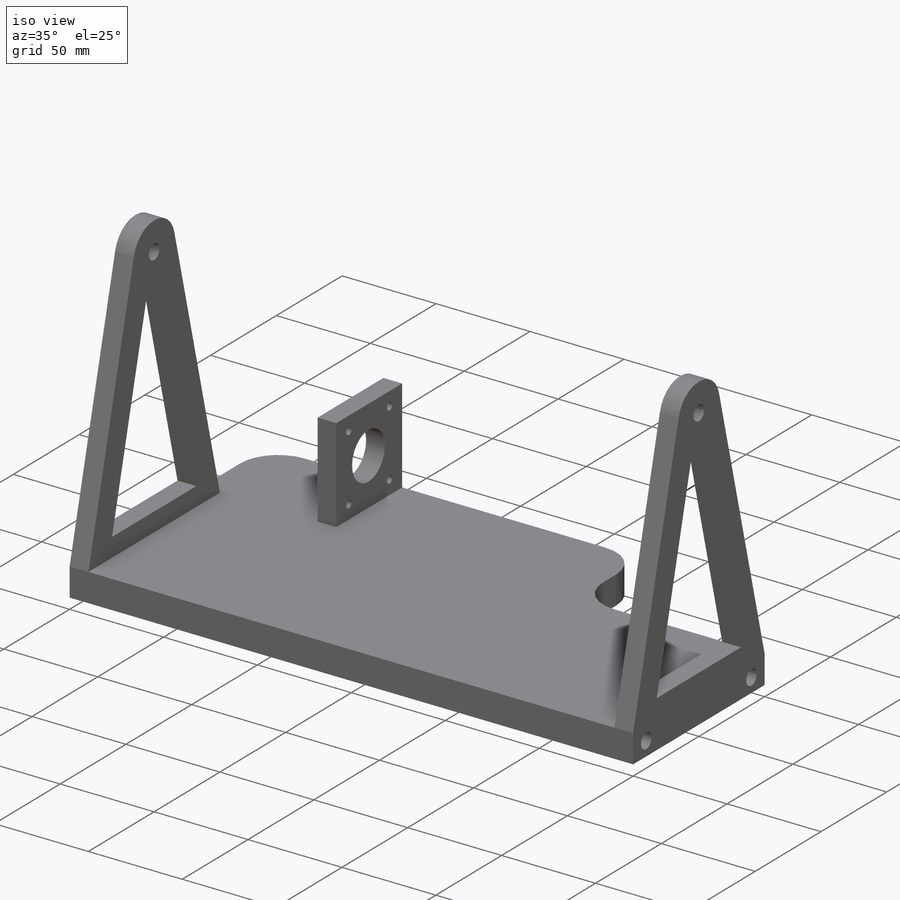
[diagram: iso view]
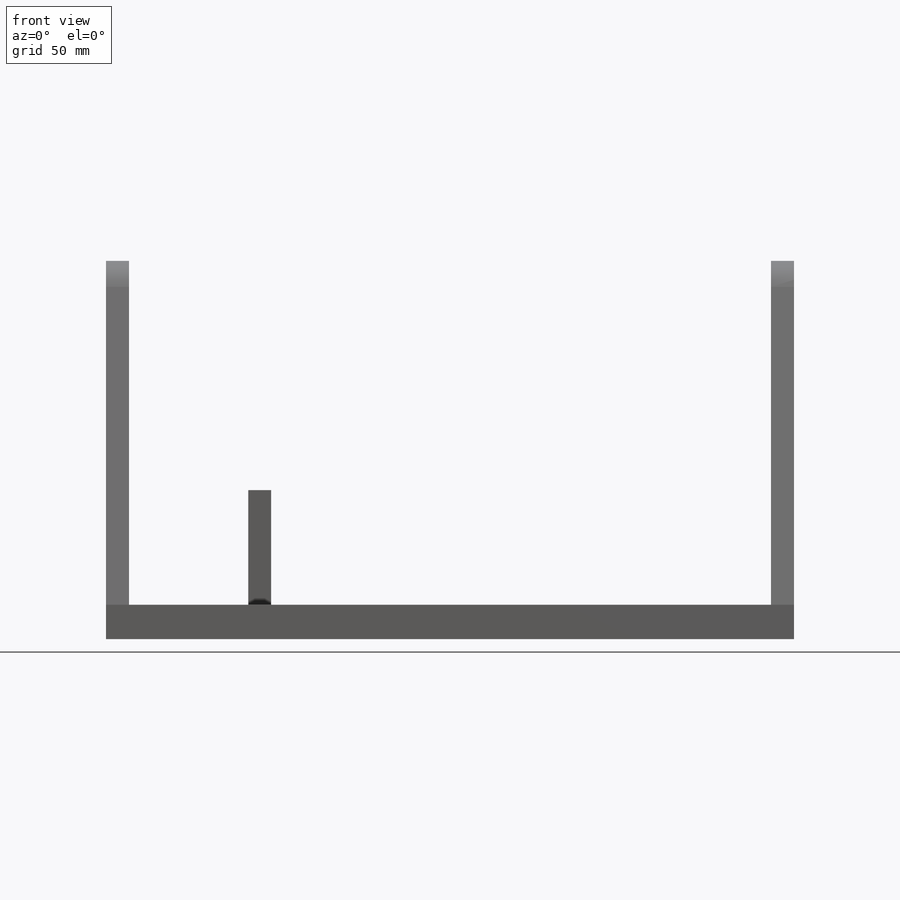
[diagram: front view]
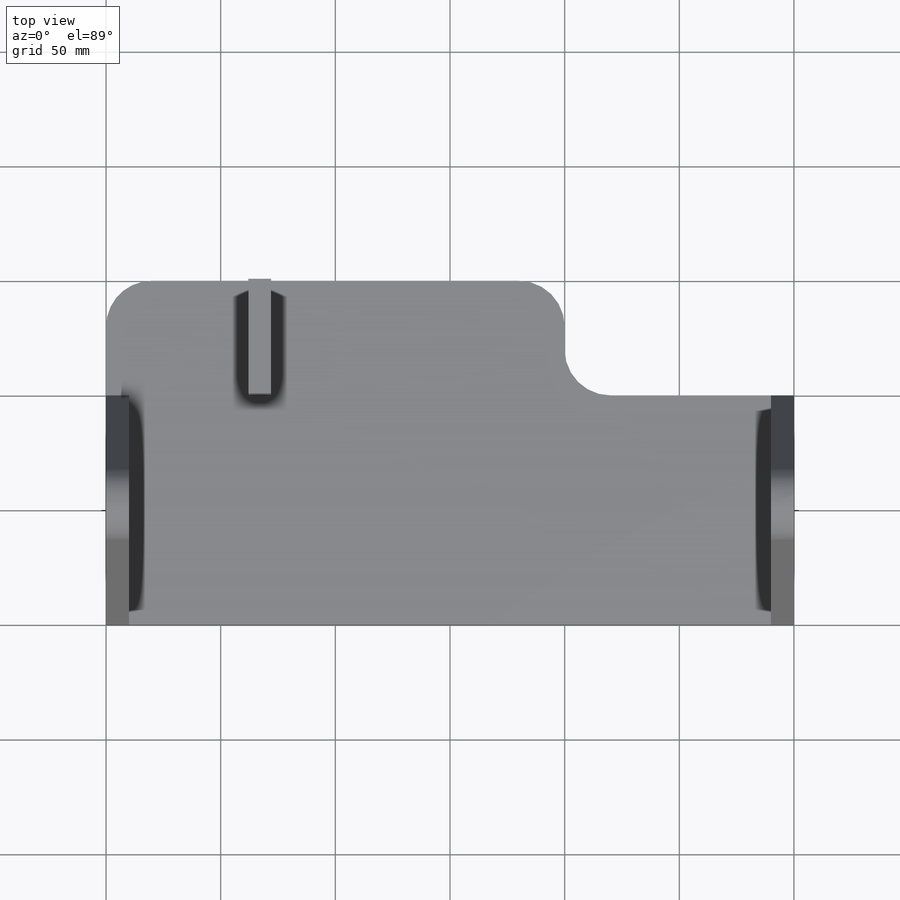
[diagram: top view]
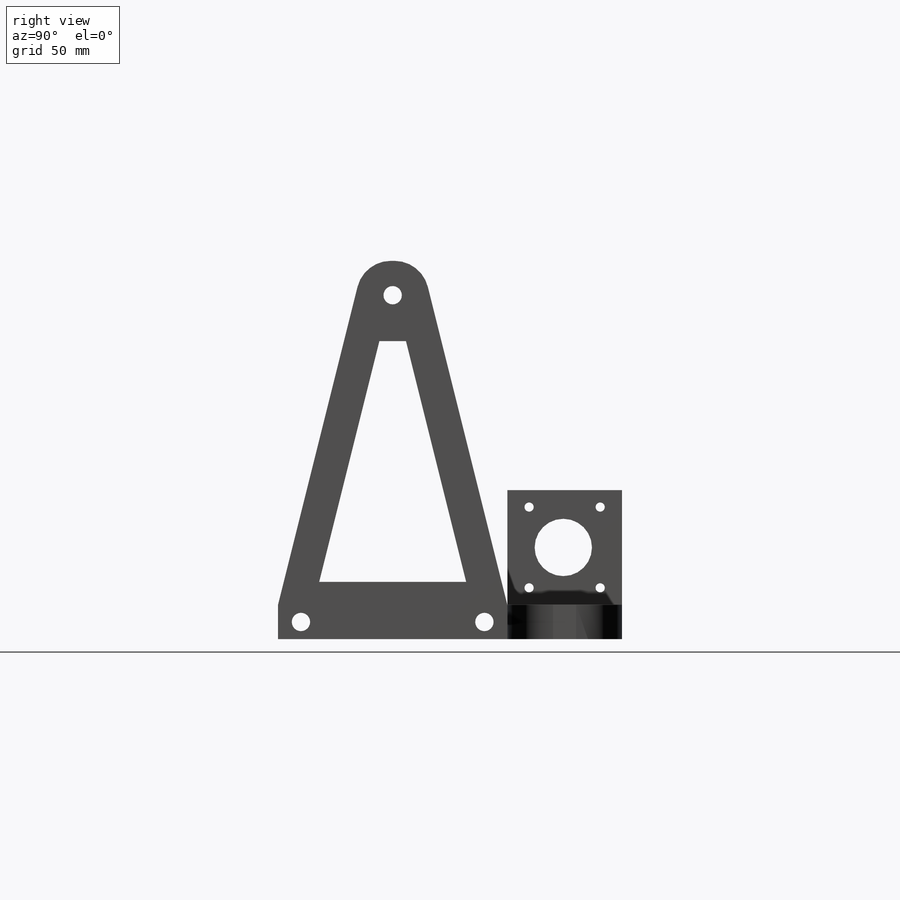
[diagram: right view]
SOLIDWORKS PART (.sldprt)
format: sldprt  version: not decoded by parser v0  size: 339,456 bytes
history: native  units: mm
features: sketch x6, extrude x4, cut_extrude x2, plane x2, material x1 (+12 scaffold rows collapsed)
feature tree (27):
  scaffold x12  (default folders/planes/origin — collapsed)
  material  "Material <not specified>"
  sketch  "Sketch8"  dims[D11=20.0mm D1=100.0mm D2=300.0mm D3=50.0mm D4=200.0mm D5=25.0mm D6=25.0mm D7=5.0mm D8=25.0mm D9=50.0mm D10=50.0mm]
  extrude  "Boss-Extrude4"  Depth=15mm
  sketch  "Sketch9"  dims[D1=8.0mm D2=7.5mm D3=40.0mm D4=40.0mm]
  cut_extrude  "Cut-Extrude2"  [1 undecoded]
  sketch  "Sketch10"  dims[c1.D3=15.0mm c1.D4=8.0mm c1.D1=150.0mm c1.D2=25.0mm c2.D3=25.0mm c3.D3=90.0deg c4.D3=25.0mm c4.D1=25.0mm c4.D2=150.0mm c4.D5=15.0mm c4.D6=~112.458151mm c5.D6=360.0deg c5.D7=~19.829121mm c6.D6=15.0mm c6.D7=10.0mm c6.D8=20.0mm]
  extrude  "Boss-Extrude6"  Depth=10mm
  sketch  "Sketch12"  dims[D1=15.0mm]
  extrude  "Boss-Extrude7"  Depth=10mm
  plane  "Plane3"  Offset=0mm
  sketch  "Sketch14"  dims[D1=10.0mm D2=50.0mm D3=0.0mm D4=62.0mm]
  extrude  "Boss-Extrude8"  Depth=50mm
  plane  "Plane4"  Offset=0mm
  sketch  "Sketch15"  dims[D3=4.0mm D5=25.0mm D1=25.0mm D2=25.0mm D4=31.0mm]
  cut_extrude  "Cut-Extrude3"  Depth=10mm
decode coverage: 11 of 12 modeling features carry decoded parameters
note: ~ marks probable driven/reference dimensions
note: 1 parameter value undecoded
note: suppression state not decoded; provenance and decode notes live in map.json
